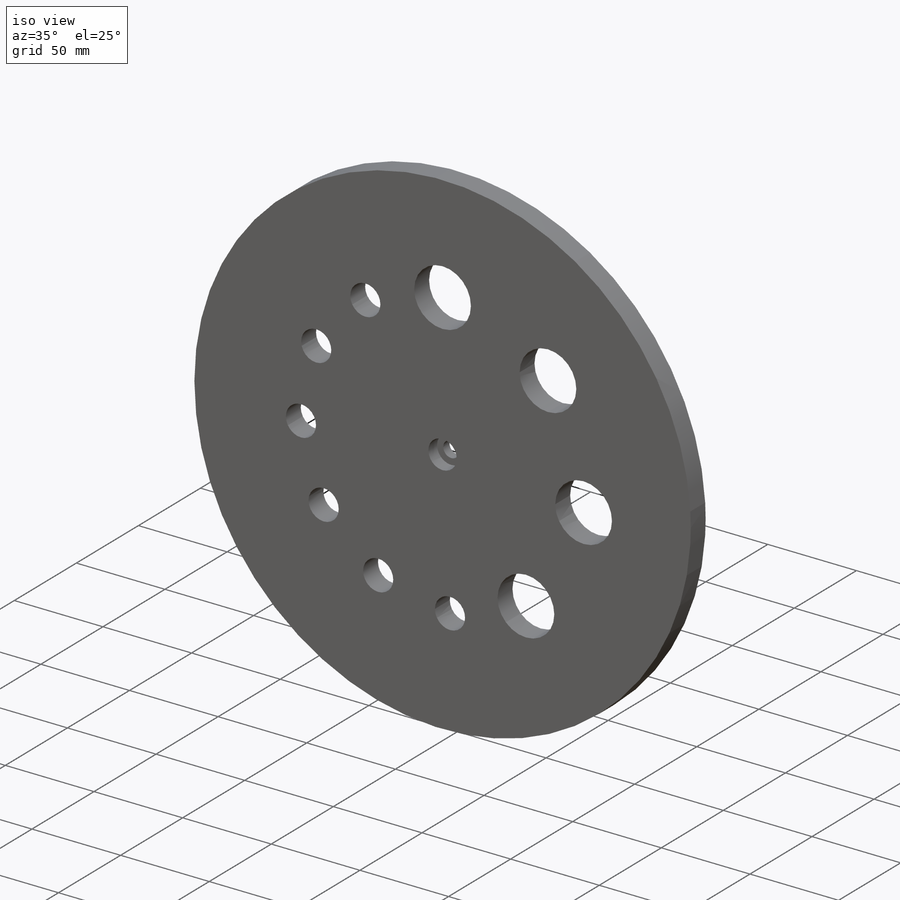
[diagram: iso view]
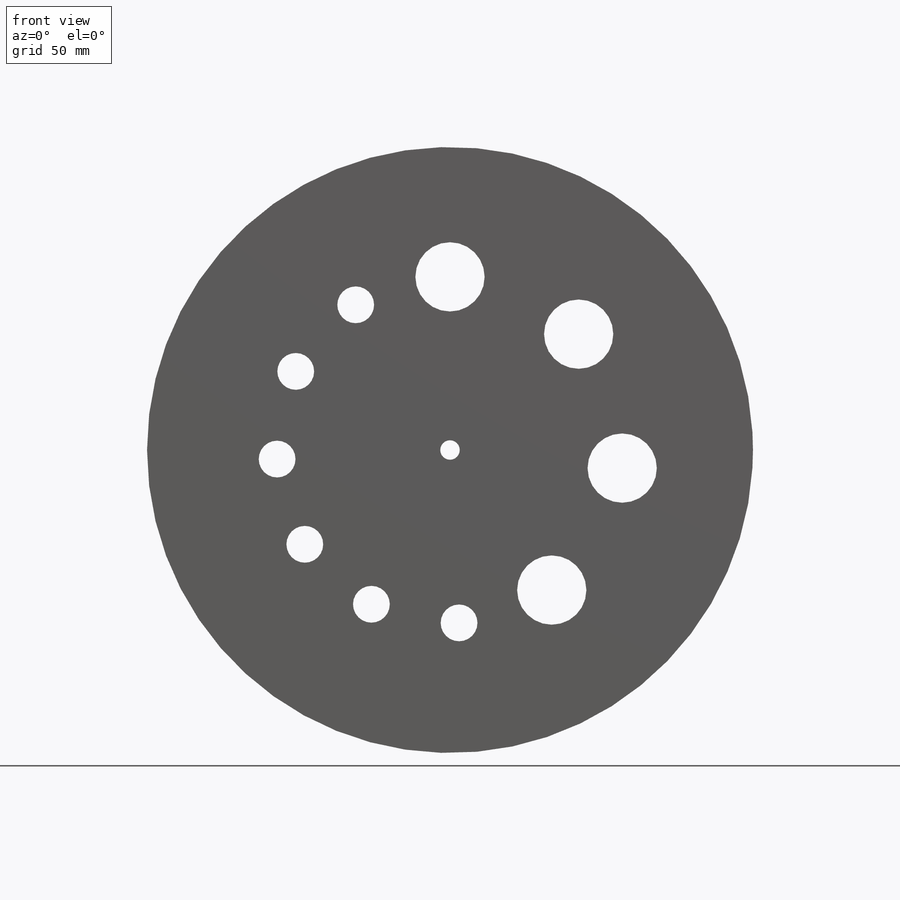
[diagram: front view]
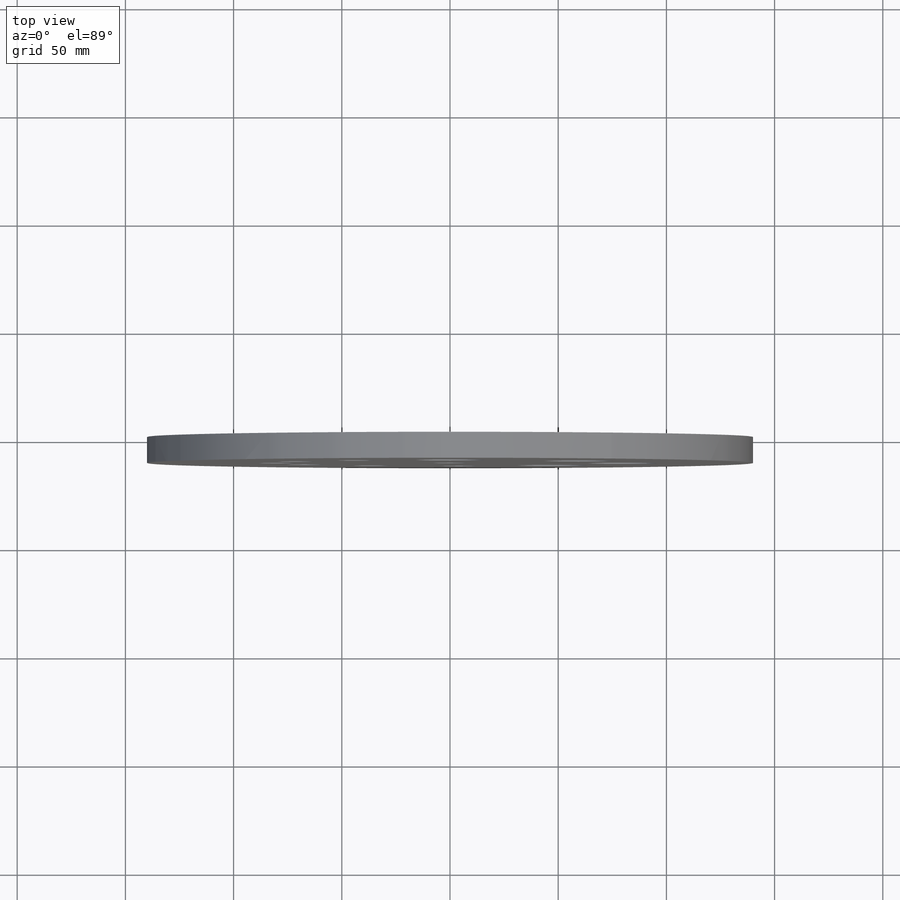
[diagram: top view]
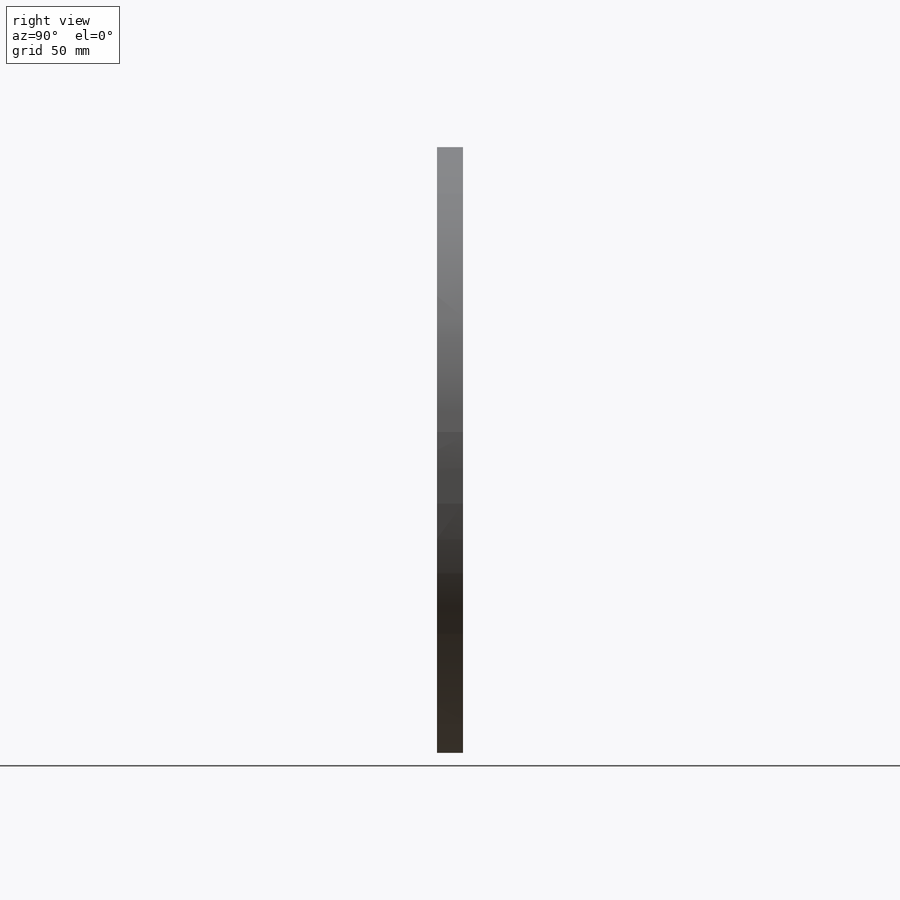
[diagram: right view]
SOLIDWORKS PART (.sldprt)
format: sldprt  version: not decoded by parser v0  size: 246,272 bytes
history: native  units: mm
features: sketch x4, material x1, extrude x1, cut_extrude x1, hole x1 (+16 scaffold rows collapsed)
feature tree (24):
  scaffold x16  (default folders/planes/origin — collapsed)
  material  "356.0-T6 Permanent Mold cast (SS)"
  sketch  "Sketch2"  dims[D1=280.0mm]
  extrude  "Boss-Extrude1"  Depth=12mm
  sketch  "Sketch3"  dims[c1.D1=~10.239182mm c1.D3=32.0mm c1.D4=12.7mm c1.D7=9.525mm c1.D8=~10.384969mm c1.D9=9.525mm c2.D7=16.0mm c2.D8=17.0mm c2.D12=16.0mm c2.D1=80.0mm c2.D4=80.0mm c2.D5=0.0mm c3.D7=80.0mm c3.D9=80.0mm c3.D10=75.0mm c4.D9=~51.423009mm c4.D10=40.0mm c4.D11=~47.02282mm c4.D1=80.0mm c4.D4=80.0mm c4.D5=~49.442719mm c4.D7=~49.442719mm c5.D9=~43.571123mm c6.D9=30.0deg c6.D10=~98.135271deg c7.D9=36.0deg c7.D10=30.0deg c7.D11=36.0deg c7.D5=48.0deg c7.D7=33.0deg c8.D9=33.0deg c8.D2=4.0 c8.D6=6.0]
  cut_extrude  "Cut-Extrude1"  [1 undecoded]
  hole  "CBORE for M5 Hex Head Bolt1"  Diameter=9mm Depth=12mm
  sketch  "Sketch5"  dims[D1=0.0mm]
  sketch  "Sketch6"  dims[hole-wizard template sketch: 41 standard entries collapsed; hole parameters kept: c12.Thru Hole Dia.=9.0mm c12.Thru Hole Depth=12.0mm c12.C'Bore Dia.=16.0mm c12.C'Bore Depth=7.0mm]
decode coverage: 6 of 7 modeling features carry decoded parameters
note: ~ marks probable driven/reference dimensions
note: 1 parameter value undecoded
note: suppression state not decoded; provenance and decode notes live in map.json
